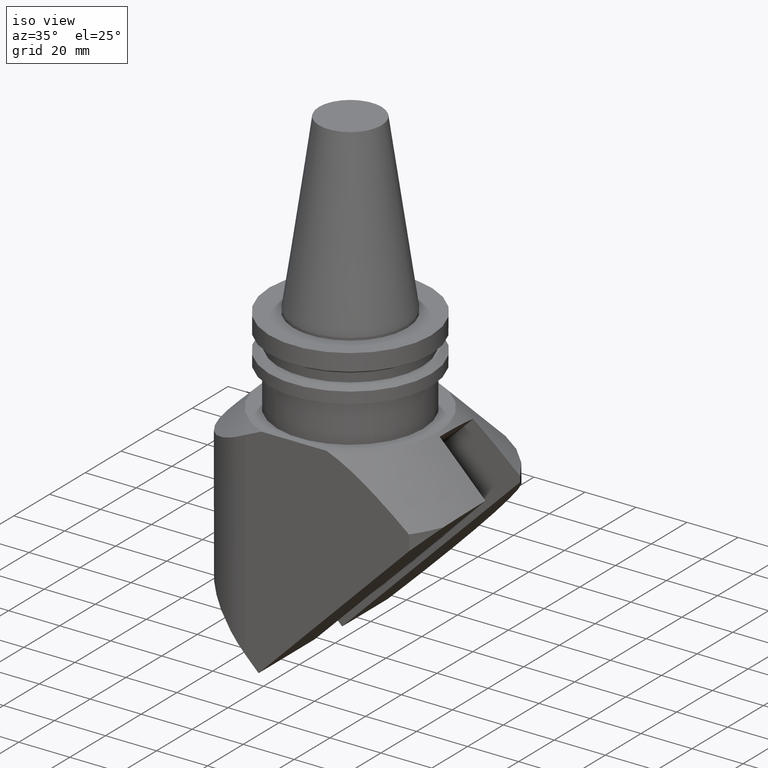
[diagram: clean part render]
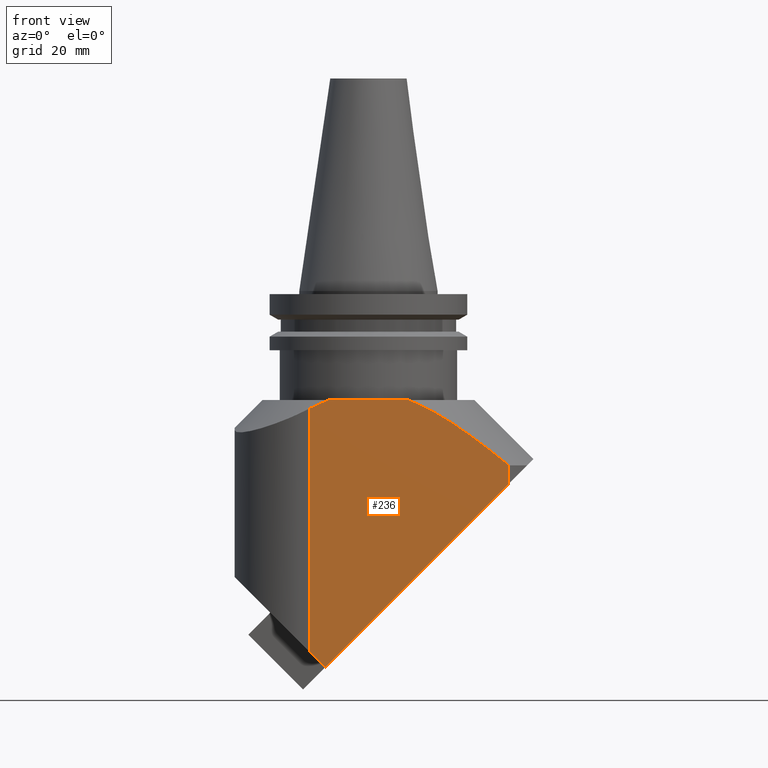
[diagram: tour spotlight — one face highlighted and labeled with its STEP entity id]
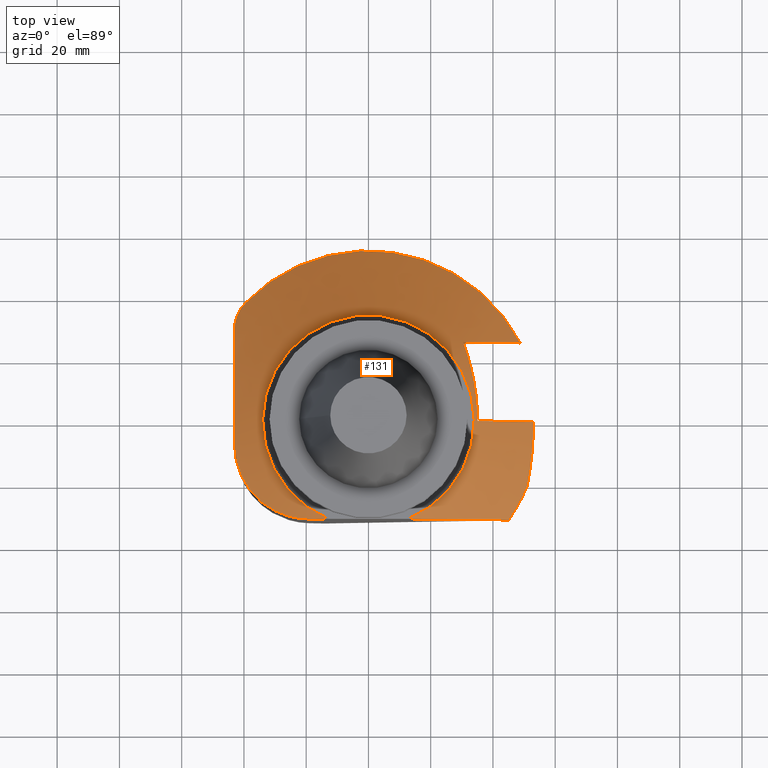
[diagram: tour spotlight — one face highlighted and labeled with its STEP entity id]
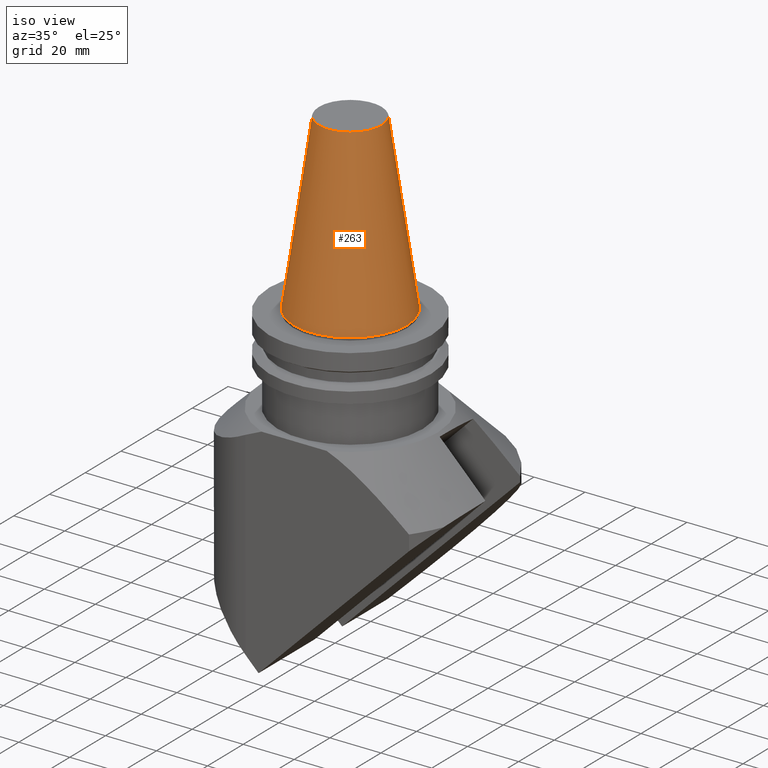
[diagram: tour spotlight — one face highlighted and labeled with its STEP entity id]
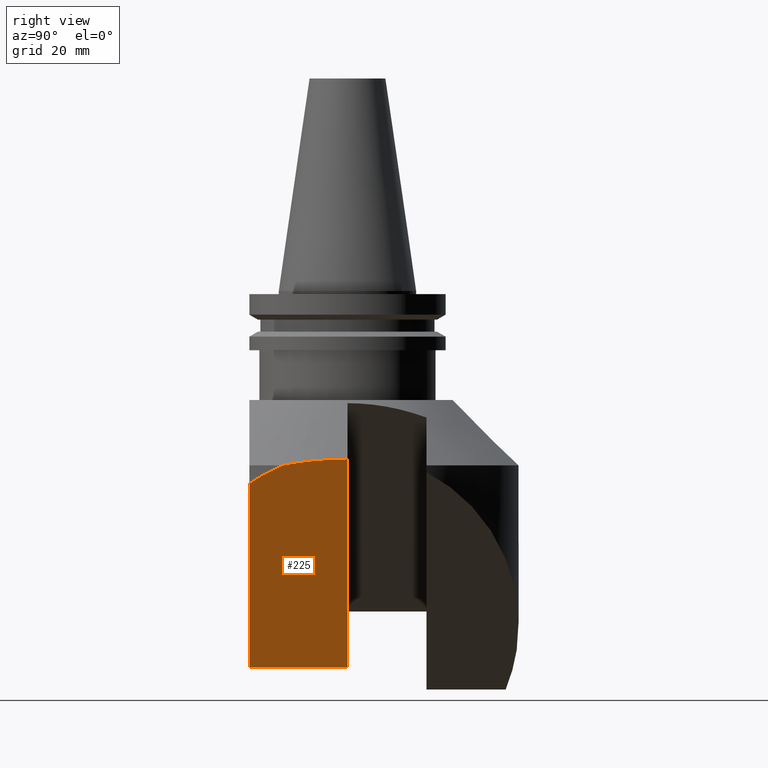
[diagram: tour spotlight — one face highlighted and labeled with its STEP entity id]
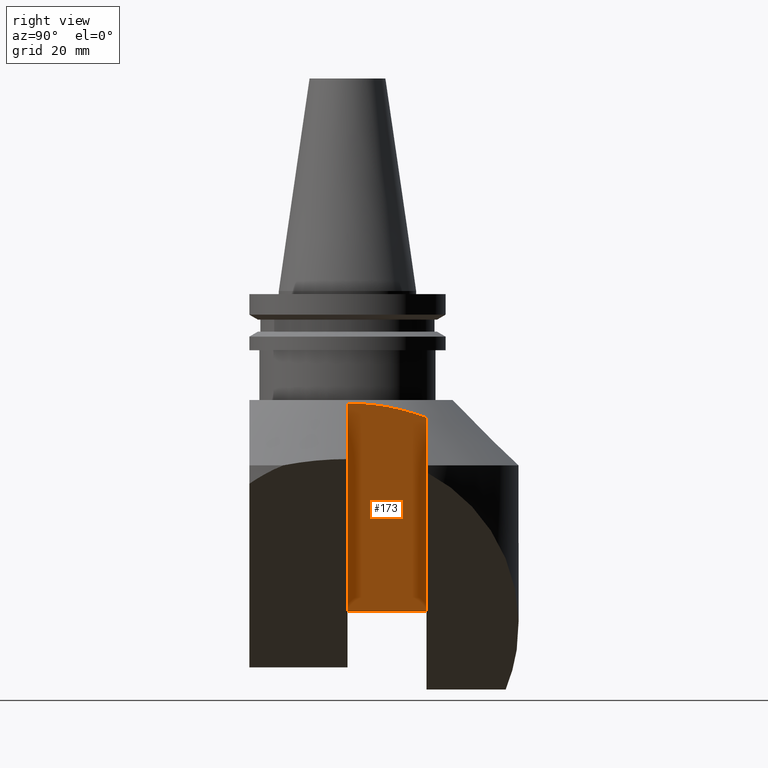
[diagram: tour spotlight — one face highlighted and labeled with its STEP entity id]
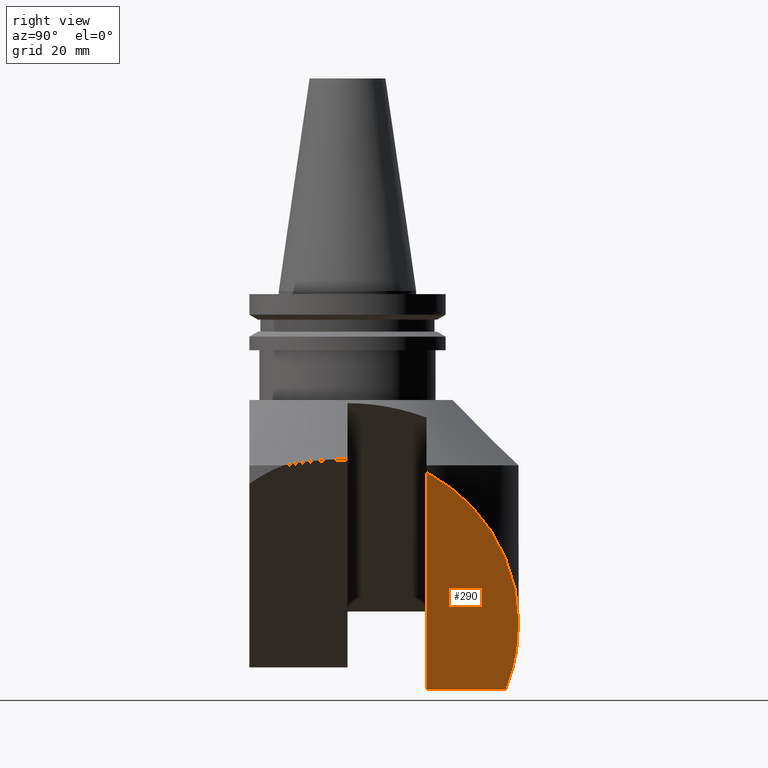
[diagram: tour spotlight — one face highlighted and labeled with its STEP entity id]
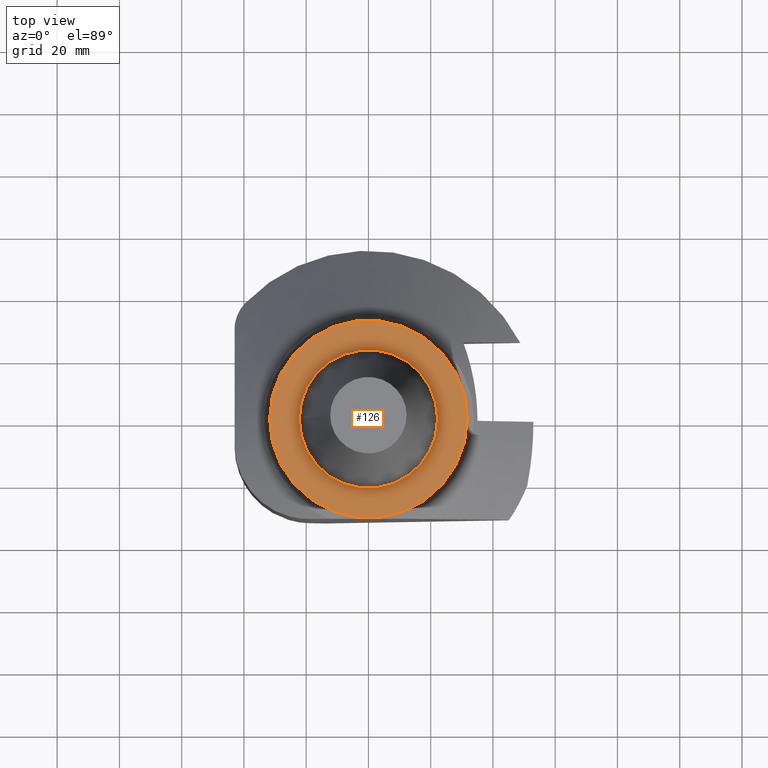
[diagram: tour spotlight — one face highlighted and labeled with its STEP entity id]
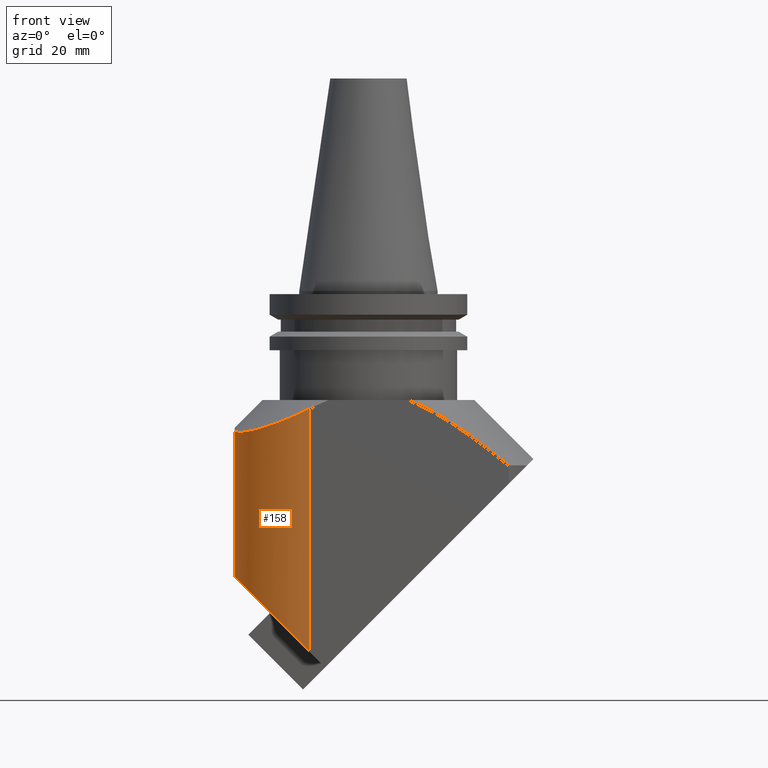
[diagram: tour spotlight — one face highlighted and labeled with its STEP entity id]
A machine part: a face-by-face anatomy tour. The part has 29 B-rep faces; the first image is the clean iso view, then the 8 largest visible faces are spotlighted one at a time (largest first), each with its STEP entity span.

Face 1 — front view, entity #236. In plain terms, the highlighted planar face has unit normal (0, 1, -0).
Definition (entity closure, byte-faithful):
#137=EDGE_CURVE('Unnamed[1]',#372,#373,#374,.T.);
#146=EDGE_CURVE('Unnamed[1]',#387,#388,#389,.T.);
#151=EDGE_CURVE('Unnamed[1]',#349,#387,#395,.T.);
#182=EDGE_CURVE('Unnamed[1]',#437,#349,#438,.T.);
#201=EDGE_CURVE('Unnamed[1]',#365,#373,#462,.T.);
#231=EDGE_CURVE('Unnamed[1]',#388,#372,#504,.T.);
#236=ADVANCED_FACE('Unnamed[1]',(#509),#510,.F.);
#269=EDGE_CURVE('Unnamed[1]',#437,#365,#555,.T.);
#349=VERTEX_POINT('',#650);
#365=VERTEX_POINT('',#696);
#372=VERTEX_POINT('',#707);
#373=VERTEX_POINT('',#708);
#374=LINE('',#709,#710);
#387=VERTEX_POINT('',#736);
#388=VERTEX_POINT('',#737);
#389=LINE('',#738,#739);
#395=(B_SPLINE_CURVE(2,(#748,#749,#750),.UNSPECIFIED.,.F.,.F.)B_SPLINE_CURVE_WITH_KNOTS((3,3),(0.0,38.6326090331156),.UNSPECIFIED.)RATIONAL_B_SPLINE_CURVE((1.0,1.07311621530074,1.0))BOUNDED_CURVE()REPRESENTATION_ITEM('')GEOMETRIC_REPRESENTATION_ITEM()CURVE());
#437=VERTEX_POINT('',#816);
#438=LINE('',#817,#818);
#462=LINE('',#860,#861);
#504=(B_SPLINE_CURVE(2,(#919,#920,#921),.UNSPECIFIED.,.F.,.F.)B_SPLINE_CURVE_WITH_KNOTS((3,3),(0.0,38.6326090331156),.UNSPECIFIED.)RATIONAL_B_SPLINE_CURVE((1.0,1.07311621530072,1.0))BOUNDED_CURVE()REPRESENTATION_ITEM('')GEOMETRIC_REPRESENTATION_ITEM()CURVE());
#509=FACE_OUTER_BOUND('',#934,.T.);
#510=PLANE('',#935);
#555=LINE('',#998,#999);
#650=CARTESIAN_POINT('',(-18.9999999999995,-31.4999999999999,-37.7865464538325));
#696=CARTESIAN_POINT('',(-13.9289321881342,-31.4999999999999,-120.928932188134));
#707=CARTESIAN_POINT('',(45.0860288781351,-31.5000000000002,-55.9999999999997));
#708=CARTESIAN_POINT('',(45.0860288781352,-31.5000000000002,-61.9139711218644));
#709=CARTESIAN_POINT('',(45.0860288781353,-31.5000000000002,-91.9999999999988));
#710=VECTOR('',#1135,1.0);
#736=CARTESIAN_POINT('',(-12.7964838920663,-31.4999999999999,-34.9999999999985));
#737=CARTESIAN_POINT('',(12.7964838920668,-31.5000000000001,-34.9999999999984));
#738=CARTESIAN_POINT('',(-9.10349278046616,-31.5,-34.9999999999984));
#739=VECTOR('',#1153,1.0);
#748=CARTESIAN_POINT('',(-45.0860288781488,-31.4999999999998,-56.0000000000119));
#749=CARTESIAN_POINT('',(-25.1318156845003,-31.4999999999999,-39.6426139583863));
#750=CARTESIAN_POINT('',(-12.796483892066,-31.4999999999999,-34.9999999999984));
#816=CARTESIAN_POINT('',(-18.9999999999995,-31.4999999999999,-115.857864376269));
#817=CARTESIAN_POINT('',(-18.9999999999995,-31.4999999999999,-276.895414657619));
#818=VECTOR('',#1211,1.0);
#860=CARTESIAN_POINT('',(-31.2131000541621,-31.4999999999999,-138.213100054163));
#861=VECTOR('',#1235,1.0);
#919=CARTESIAN_POINT('',(12.7964838920666,-31.5000000000001,-34.9999999999983));
#920=CARTESIAN_POINT('',(25.1318156845009,-31.5000000000001,-39.6426139583861));
#921=CARTESIAN_POINT('',(45.0860288781495,-31.5000000000002,-56.0000000000115));
#934=EDGE_LOOP('',(#1295,#1296,#1297,#1298,#1299,#1300,#1301));
#935=AXIS2_PLACEMENT_3D('',#1302,#1303,#1304);
#998=CARTESIAN_POINT('',(27.4039353731512,-31.5000000000001,-162.261799749421));
#999=VECTOR('',#1351,1.0);
#1135=DIRECTION('',(4.23985966663277E-015,-6.12323399573684E-017,-1.0));
#1153=DIRECTION('',(1.0,-4.6186276791661E-015,3.99815232951625E-015));
#1211=DIRECTION('',(-1.22464679914735E-016,6.12323399573677E-017,1.0));
#1235=DIRECTION('',(0.707106781186543,-3.22256514890244E-015,0.707106781186552));
#1295=ORIENTED_EDGE('',*,*,#269,.T.);
#1296=ORIENTED_EDGE('',*,*,#201,.T.);
#1297=ORIENTED_EDGE('',*,*,#137,.F.);
#1298=ORIENTED_EDGE('',*,*,#231,.F.);
#1299=ORIENTED_EDGE('',*,*,#146,.F.);
#1300=ORIENTED_EDGE('',*,*,#151,.F.);
#1301=ORIENTED_EDGE('',*,*,#182,.F.);
#1302=CARTESIAN_POINT('',(13.0430144390678,-31.5000000000001,-276.895414657619));
#1303=DIRECTION('',(4.6186276791661E-015,1.0,-6.12323399573671E-017));
#1304=DIRECTION('',(-1.0,4.6186276791661E-015,-1.22464679914736E-016));
#1351=DIRECTION('',(0.70710678118654,-3.30916075452598E-015,-0.707106781186555));

Face 2 — top view, entity #131. In plain terms, the highlighted conical surface has half-angle 45 deg.
Definition (entity closure, byte-faithful):
#117=EDGE_CURVE('Unnamed[1]',#337,#338,#339,.T.);
#119=EDGE_CURVE('Unnamed[1]',#341,#337,#342,.T.);
#121=EDGE_CURVE('Unnamed[1]',#344,#345,#346,.T.);
#123=EDGE_CURVE('Unnamed[1]',#348,#349,#350,.T.);
#131=ADVANCED_FACE('Unnamed[1]',(#362),#363,.T.);
#139=EDGE_CURVE('Unnamed[1]',#376,#348,#377,.T.);
#151=EDGE_CURVE('Unnamed[1]',#349,#387,#395,.T.);
#166=EDGE_CURVE('Unnamed[1]',#387,#388,#415,.T.);
#184=EDGE_CURVE('Unnamed[1]',#338,#440,#441,.T.);
#199=EDGE_CURVE('Unnamed[1]',#440,#345,#460,.T.);
#231=EDGE_CURVE('Unnamed[1]',#388,#372,#504,.T.);
#238=EDGE_CURVE('Unnamed[1]',#341,#372,#512,.T.);
#299=EDGE_CURVE('Unnamed[1]',#344,#376,#594,.T.);
#337=VERTEX_POINT('',#630);
#338=VERTEX_POINT('',#631);
#339=LINE('',#632,#633);
#341=VERTEX_POINT('',#636);
#342=B_SPLINE_CURVE_WITH_KNOTS('',2,(#637,#638,#639,#640,#641),.UNSPECIFIED.,.F.,.F.,(3,2,3),(0.0,20.832899807414,41.665799614828),.UNSPECIFIED.);
#344=VERTEX_POINT('',#644);
#345=VERTEX_POINT('',#645);
#346=CIRCLE('',#646,55.0000000000001);
#348=VERTEX_POINT('',#649);
#349=VERTEX_POINT('',#650);
#350=B_SPLINE_CURVE_WITH_KNOTS('',3,(#651,#652,#653,#654,#655,#656,#657,#658,#659,#660,#661,#662,#663,#664,#665,#666,#667,#668,#669,#670,#671,#672,#673,#674,#675,#676),.UNSPECIFIED.,.F.,.F.,(4,2,2,2,2,2,2,2,2,2,2,2,4),(26.1210340867507,29.2629536053741,32.4048731239974,35.4695282493329,38.5341833746684,41.598838500004,44.6634936253395,47.8561395716159,51.0487855178923,54.2414314641686,57.434077410445,60.9718571634875,64.50963691653),.UNSPECIFIED.);
#362=FACE_OUTER_BOUND('',#692,.T.);
#363=CONICAL_SURFACE('',#693,44.4999999999994,0.785398163397441);
#372=VERTEX_POINT('',#707);
#376=VERTEX_POINT('',#713);
#377=(B_SPLINE_CURVE(2,(#715,#716,#717),.UNSPECIFIED.,.F.,.F.)B_SPLINE_CURVE_WITH_KNOTS((3,3),(0.0,72.6636084983826),.UNSPECIFIED.)RATIONAL_B_SPLINE_CURVE((1.0,1.27906976744214,1.0))BOUNDED_CURVE()REPRESENTATION_ITEM('')GEOMETRIC_REPRESENTATION_ITEM()CURVE());
#387=VERTEX_POINT('',#736);
#388=VERTEX_POINT('',#737);
#395=(B_SPLINE_CURVE(2,(#748,#749,#750),.UNSPECIFIED.,.F.,.F.)B_SPLINE_CURVE_WITH_KNOTS((3,3),(0.0,38.6326090331156),.UNSPECIFIED.)RATIONAL_B_SPLINE_CURVE((1.0,1.07311621530074,1.0))BOUNDED_CURVE()REPRESENTATION_ITEM('')GEOMETRIC_REPRESENTATION_ITEM()CURVE());
#415=CIRCLE('',#784,33.9999999999988);
#440=VERTEX_POINT('',#821);
#441=B_SPLINE_CURVE_WITH_KNOTS('',2,(#822,#823,#824),.UNSPECIFIED.,.F.,.F.,(3,3),(0.0,119.908544665201),.UNSPECIFIED.);
#460=(B_SPLINE_CURVE(2,(#849,#850,#851),.UNSPECIFIED.,.F.,.F.)B_SPLINE_CURVE_WITH_KNOTS((3,3),(0.0,33.5817904275309),.UNSPECIFIED.)RATIONAL_B_SPLINE_CURVE((1.0,1.0462986387854,1.0))BOUNDED_CURVE()REPRESENTATION_ITEM('')GEOMETRIC_REPRESENTATION_ITEM()CURVE());
#504=(B_SPLINE_CURVE(2,(#919,#920,#921),.UNSPECIFIED.,.F.,.F.)B_SPLINE_CURVE_WITH_KNOTS((3,3),(0.0,38.6326090331156),.UNSPECIFIED.)RATIONAL_B_SPLINE_CURVE((1.0,1.07311621530072,1.0))BOUNDED_CURVE()REPRESENTATION_ITEM('')GEOMETRIC_REPRESENTATION_ITEM()CURVE());
#512=CIRCLE('',#938,55.0000000000001);
#594=B_SPLINE_CURVE_WITH_KNOTS('',3,(#1055,#1056,#1057,#1058,#1059,#1060,#1061,#1062,#1063,#1064,#1065,#1066,#1067,#1068,#1069,#1070,#1071,#1072),.UNSPECIFIED.,.F.,.F.,(4,2,2,2,2,2,2,2,4),(36.2557716590916,37.5446252428977,38.8334788267038,40.12233241051,41.4111859943161,42.7000395781222,44.2429399208327,45.7858402635432,47.3287406062536),.UNSPECIFIED.);
#630=CARTESIAN_POINT('',(53.0000000000004,-3.85271485007796E-013,-53.9999999999996));
#631=CARTESIAN_POINT('',(35.0394877578622,2.94327983208917E-013,-36.0394877578613));
#632=CARTESIAN_POINT('',(44.4999999999999,2.92010826001792E-013,-45.499999999999));
#633=VECTOR('',#1106,1.0);
#636=CARTESIAN_POINT('',(50.9999999999997,-20.5912602819761,-55.9999999999998));
#637=CARTESIAN_POINT('',(50.9997901113171,-20.592340721754,-56.0002098886824));
#638=CARTESIAN_POINT('',(53.0000000000005,-10.2961703608755,-53.999999999999));
#639=CARTESIAN_POINT('',(53.0000000000005,-1.30424884109193E-014,-53.999999999999));
#640=CARTESIAN_POINT('',(53.0000000000005,10.2961703608755,-53.999999999999));
#641=CARTESIAN_POINT('',(50.9997901113171,20.592340721754,-56.0002098886824));
#644=CARTESIAN_POINT('',(-39.6511627906968,38.1154206240154,-56.0000000000001));
#645=CARTESIAN_POINT('',(48.7836038029177,25.4000000000002,-55.9999999999998));
#646=AXIS2_PLACEMENT_3D('',#1107,#1108,#1109);
#649=CARTESIAN_POINT('',(-42.9999999999993,-7.49999999999967,-44.6491695224545));
#650=CARTESIAN_POINT('',(-18.9999999999995,-31.4999999999999,-37.7865464538325));
#651=CARTESIAN_POINT('',(-42.9694685823303,-6.28980337108126,-44.4273745084132));
#652=CARTESIAN_POINT('',(-43.0254126314851,-7.3978460744687,-44.6432120353778));
#653=CARTESIAN_POINT('',(-43.0037050726678,-8.51637629093491,-44.8253065560788));
#654=CARTESIAN_POINT('',(-42.8099886090219,-10.7086321721822,-45.1155313618004));
#655=CARTESIAN_POINT('',(-42.6379543051918,-11.7823544868815,-45.2236699984518));
#656=CARTESIAN_POINT('',(-42.182099669516,-13.7951313129174,-45.3689294630072));
#657=CARTESIAN_POINT('',(-41.88284656391,-14.8176308127668,-45.4135423577628));
#658=CARTESIAN_POINT('',(-41.1309507025361,-16.8484441797186,-45.4348163328809));
#659=CARTESIAN_POINT('',(-40.6782934786384,-17.8567526277081,-45.4114833647167));
#660=CARTESIAN_POINT('',(-39.6396859063184,-19.7969142007378,-45.2946406522136));
#661=CARTESIAN_POINT('',(-39.0532403375704,-20.7297240842489,-45.2010685500471));
#662=CARTESIAN_POINT('',(-37.78874428759,-22.4713438100465,-44.9523367632936));
#663=CARTESIAN_POINT('',(-37.1107309192384,-23.2801784665288,-44.7971621564313));
#664=CARTESIAN_POINT('',(-35.6972983792389,-24.7713398425834,-44.4378986273893));
#665=CARTESIAN_POINT('',(-34.89946280051,-25.5114998903284,-44.2165344542336));
#666=CARTESIAN_POINT('',(-33.1873765536986,-26.8887955319529,-43.6997541852656));
#667=CARTESIAN_POINT('',(-32.2731604417753,-27.5259659471109,-43.4043164105869));
#668=CARTESIAN_POINT('',(-30.3807717755459,-28.6587839759325,-42.7517371221532));
#669=CARTESIAN_POINT('',(-29.401824995131,-29.1549793750131,-42.3942824581296));
#670=CARTESIAN_POINT('',(-27.4411962114427,-29.9918274382606,-41.6390876792466));
#671=CARTESIAN_POINT('',(-26.4595620086914,-30.3325621458989,-41.241314382709));
#672=CARTESIAN_POINT('',(-24.4602018527796,-30.8961199529364,-40.3938813843897));
#673=CARTESIAN_POINT('',(-23.3552101515649,-31.1288541157082,-39.9032006708329));
#674=CARTESIAN_POINT('',(-21.1037809390728,-31.4345922910756,-38.848259999896));
#675=CARTESIAN_POINT('',(-19.9573823335316,-31.5076786451012,-38.2839408774409));
#676=CARTESIAN_POINT('',(-18.8237335880866,-31.4993527027713,-37.69526082328));
#692=EDGE_LOOP('',(#1118,#1119,#1120,#1121,#1122,#1123,#1124,#1125,#1126,#1127,#1128,#1129));
#693=AXIS2_PLACEMENT_3D('',#1130,#1131,#1132);
#707=CARTESIAN_POINT('',(45.0860288781351,-31.5000000000002,-55.9999999999997));
#713=CARTESIAN_POINT('',(-42.9999999999992,29.7993288515031,-53.3163454381134));
#715=CARTESIAN_POINT('',(-42.9999999999992,34.2928563989832,-56.0000000000115));
#716=CARTESIAN_POINT('',(-42.9999999999993,1.03899586077456E-013,-34.6181818181743));
#717=CARTESIAN_POINT('',(-42.9999999999994,-34.2928563989829,-56.0000000000115));
#736=CARTESIAN_POINT('',(-12.7964838920663,-31.4999999999999,-34.9999999999985));
#737=CARTESIAN_POINT('',(12.7964838920668,-31.5000000000001,-34.9999999999984));
#748=CARTESIAN_POINT('',(-45.0860288781488,-31.4999999999998,-56.0000000000119));
#749=CARTESIAN_POINT('',(-25.1318156845003,-31.4999999999999,-39.6426139583863));
#750=CARTESIAN_POINT('',(-12.796483892066,-31.4999999999999,-34.9999999999984));
#784=AXIS2_PLACEMENT_3D('',#1186,#1187,#1188);
#821=CARTESIAN_POINT('',(30.4363953521002,25.4000000000002,-40.6425801636233));
#822=CARTESIAN_POINT('',(15.078765627041,-52.8928531558275,-56.0002098886825));
#823=CARTESIAN_POINT('',(55.0002098886838,-1.10879150918611E-014,-16.0787656270398));
#824=CARTESIAN_POINT('',(15.078765627041,52.8928531558275,-56.0002098886825));
#849=CARTESIAN_POINT('',(22.6017698421922,25.4000000000002,-34.999999999991));
#850=CARTESIAN_POINT('',(32.6038855826212,25.4000000000002,-41.648985820585));
#851=CARTESIAN_POINT('',(48.7838404371693,25.4000000000003,-56.0002098886824));
#919=CARTESIAN_POINT('',(12.7964838920666,-31.5000000000001,-34.9999999999983));
#920=CARTESIAN_POINT('',(25.1318156845009,-31.5000000000001,-39.6426139583861));
#921=CARTESIAN_POINT('',(45.0860288781495,-31.5000000000002,-56.0000000000115));
#938=AXIS2_PLACEMENT_3D('',#1305,#1306,#1307);
#1055=CARTESIAN_POINT('',(-38.6772671526272,39.022103329239,-55.9422928410586));
#1056=CARTESIAN_POINT('',(-39.0263570395986,38.7315122138396,-55.981649885972));
#1057=CARTESIAN_POINT('',(-39.3534343272449,38.4251451286511,-56.0000000000001));
#1058=CARTESIAN_POINT('',(-39.9488912541485,37.8056961193799,-56.0000000000001));
#1059=CARTESIAN_POINT('',(-40.2421062007639,37.4667782265766,-55.9816498859716));
#1060=CARTESIAN_POINT('',(-40.7952706044588,36.7461972633089,-55.9029357961448));
#1061=CARTESIAN_POINT('',(-41.0552206566583,36.364534747911,-55.8425709212606));
#1062=CARTESIAN_POINT('',(-41.5259916391148,35.5797173286457,-55.6820018060092));
#1063=CARTESIAN_POINT('',(-41.7370472659761,35.1762284600342,-55.5817398436664));
#1064=CARTESIAN_POINT('',(-42.1034021049853,34.3720408572206,-55.3502697574901));
#1065=CARTESIAN_POINT('',(-42.2587486622798,33.9713573270032,-55.2190837488597));
#1066=CARTESIAN_POINT('',(-42.5405522018784,33.1238529322261,-54.9136263698596));
#1067=CARTESIAN_POINT('',(-42.6696571086576,32.6401554698785,-54.7203428433214));
#1068=CARTESIAN_POINT('',(-42.8659014811064,31.6571703282053,-54.2865629527261));
#1069=CARTESIAN_POINT('',(-42.9330994531661,31.1578877851209,-54.0460814201962));
#1070=CARTESIAN_POINT('',(-43.0044193919994,30.1714320851678,-53.5311065562397));
#1071=CARTESIAN_POINT('',(-43.0086331019961,29.6839232987423,-53.2564551514201));
#1072=CARTESIAN_POINT('',(-42.9857557853309,29.2148134501781,-52.9738446275038));
#1106=DIRECTION('',(-0.707106781186545,1.7319121124711E-016,0.70710678118655));
#1107=CARTESIAN_POINT('',(5.18444349174941E-013,-3.42901103761268E-015,-56.0));
#1108=DIRECTION('',(4.23985966663278E-015,-6.12323399573684E-017,-1.0));
#1109=DIRECTION('',(-1.0,1.83697019872103E-016,-4.23985966663278E-015));
#1118=ORIENTED_EDGE('',*,*,#199,.T.);
#1119=ORIENTED_EDGE('',*,*,#121,.F.);
#1120=ORIENTED_EDGE('',*,*,#299,.T.);
#1121=ORIENTED_EDGE('',*,*,#139,.T.);
#1122=ORIENTED_EDGE('',*,*,#123,.T.);
#1123=ORIENTED_EDGE('',*,*,#151,.T.);
#1124=ORIENTED_EDGE('',*,*,#166,.T.);
#1125=ORIENTED_EDGE('',*,*,#231,.T.);
#1126=ORIENTED_EDGE('',*,*,#238,.F.);
#1127=ORIENTED_EDGE('',*,*,#119,.T.);
#1128=ORIENTED_EDGE('',*,*,#117,.T.);
#1129=ORIENTED_EDGE('',*,*,#184,.T.);
#1130=CARTESIAN_POINT('',(4.73925822675294E-013,-2.78607146806027E-015,-45.4999999999992));
#1131=DIRECTION('',(4.23985966663278E-015,-6.12323399573684E-017,-1.0));
#1132=DIRECTION('',(-1.0,1.83697019872103E-016,-4.23985966663278E-015));
#1186=CARTESIAN_POINT('',(4.29407296175646E-013,-2.14313189850785E-015,-34.9999999999984));
#1187=DIRECTION('',(4.23985966663279E-015,-6.12323399573684E-017,-1.0));
#1188=DIRECTION('',(-1.0,1.83697019872103E-016,-4.23985966663279E-015));
#1305=CARTESIAN_POINT('',(5.18444349174941E-013,-3.42901103761268E-015,-56.0));
#1306=DIRECTION('',(4.23985966663278E-015,-6.12323399573684E-017,-1.0));
#1307=DIRECTION('',(-1.0,1.83697019872103E-016,-4.23985966663278E-015));

Face 3 — iso view, entity #263. In plain terms, the highlighted conical surface has half-angle 8.297 deg.
Definition (entity closure, byte-faithful):
#153=EDGE_CURVE('Unnamed[1]',#397,#397,#398,.T.);
#260=EDGE_CURVE('Unnamed[1]',#542,#542,#543,.T.);
#263=ADVANCED_FACE('Unnamed[1]',(#546,#547),#548,.T.);
#397=VERTEX_POINT('',#759);
#398=CIRCLE('',#760,12.2718750014769);
#542=VERTEX_POINT('',#980);
#543=CIRCLE('',#981,22.225);
#546=FACE_BOUND('',#985,.T.);
#547=FACE_BOUND('',#986,.T.);
#548=CONICAL_SURFACE('',#987,17.2484375007384,0.14481249821775);
#759=CARTESIAN_POINT('',(-12.2718750014769,6.4334140681046E-015,68.2499999999999));
#760=AXIS2_PLACEMENT_3D('',#1165,#1166,#1167);
#980=CARTESIAN_POINT('',(-22.2249999999997,4.08266626665743E-015,-9.42308810909133E-014));
#981=AXIS2_PLACEMENT_3D('',#1338,#1339,#1340);
#985=EDGE_LOOP('',(#1342));
#986=EDGE_LOOP('',(#1343));
#987=AXIS2_PLACEMENT_3D('',#1344,#1345,#1346);
#1165=CARTESIAN_POINT('',(-8.35821440418068E-015,4.17910720209035E-015,68.25));
#1166=DIRECTION('',(4.23985966663278E-015,-6.12323399573684E-017,-1.0));
#1167=DIRECTION('',(-1.0,1.83697019872103E-016,-4.23985966663278E-015));
#1338=CARTESIAN_POINT('',(2.81012207843506E-013,-5.1621105128532E-029,3.4414070085688E-029));
#1339=DIRECTION('',(4.23985966663276E-015,-6.12323399573684E-017,-1.0));
#1340=DIRECTION('',(-1.0,1.83697019872103E-016,-4.23985966663276E-015));
#1342=ORIENTED_EDGE('',*,*,#260,.F.);
#1343=ORIENTED_EDGE('',*,*,#153,.T.);
#1344=CARTESIAN_POINT('',(1.36326996719663E-013,2.08955360104515E-015,34.125));
#1345=DIRECTION('',(4.23985966663279E-015,-6.12323399573684E-017,-1.0));
#1346=DIRECTION('',(-1.0,1.83697019872103E-016,-4.23985966663279E-015));

Face 4 — right view, entity #225. In plain terms, the highlighted planar face has unit normal (-0.7071, 0, 0.7071).
Definition (entity closure, byte-faithful):
#119=EDGE_CURVE('Unnamed[1]',#341,#337,#342,.T.);
#133=EDGE_CURVE('Unnamed[1]',#365,#366,#367,.T.);
#201=EDGE_CURVE('Unnamed[1]',#365,#373,#462,.T.);
#225=ADVANCED_FACE('Unnamed[1]',(#497),#498,.F.);
#255=EDGE_CURVE('Unnamed[1]',#373,#341,#535,.T.);
#278=EDGE_CURVE('Unnamed[1]',#366,#337,#567,.T.);
#337=VERTEX_POINT('',#630);
#341=VERTEX_POINT('',#636);
#342=B_SPLINE_CURVE_WITH_KNOTS('',2,(#637,#638,#639,#640,#641),.UNSPECIFIED.,.F.,.F.,(3,2,3),(0.0,20.832899807414,41.665799614828),.UNSPECIFIED.);
#365=VERTEX_POINT('',#696);
#366=VERTEX_POINT('',#697);
#367=LINE('',#698,#699);
#373=VERTEX_POINT('',#708);
#462=LINE('',#860,#861);
#497=FACE_OUTER_BOUND('',#908,.T.);
#498=PLANE('',#909);
#535=ELLIPSE('',#971,77.7817459305204,55.0);
#567=LINE('',#1016,#1017);
#630=CARTESIAN_POINT('',(53.0000000000004,-3.85271485007796E-013,-53.9999999999996));
#636=CARTESIAN_POINT('',(50.9999999999997,-20.5912602819761,-55.9999999999998));
#637=CARTESIAN_POINT('',(50.9997901113171,-20.592340721754,-56.0002098886824));
#638=CARTESIAN_POINT('',(53.0000000000005,-10.2961703608755,-53.999999999999));
#639=CARTESIAN_POINT('',(53.0000000000005,-1.30424884109193E-014,-53.999999999999));
#640=CARTESIAN_POINT('',(53.0000000000005,10.2961703608755,-53.999999999999));
#641=CARTESIAN_POINT('',(50.9997901113171,20.592340721754,-56.0002098886824));
#696=CARTESIAN_POINT('',(-13.9289321881342,-31.4999999999999,-120.928932188134));
#697=CARTESIAN_POINT('',(-13.9289321881341,-4.84605815346446E-015,-120.928932188134));
#698=CARTESIAN_POINT('',(-13.9289321881341,-4.84605815346446E-015,-120.928932188134));
#699=VECTOR('',#1133,1.0);
#708=CARTESIAN_POINT('',(45.0860288781352,-31.5000000000002,-61.9139711218644));
#860=CARTESIAN_POINT('',(-31.2131000541621,-31.4999999999999,-138.213100054163));
#861=VECTOR('',#1235,1.0);
#908=EDGE_LOOP('',(#1277,#1278,#1279,#1280,#1281));
#909=AXIS2_PLACEMENT_3D('',#1282,#1283,#1284);
#971=AXIS2_PLACEMENT_3D('',#1329,#1330,#1331);
#1016=CARTESIAN_POINT('',(6.23223304750986,2.1518711434151E-014,-100.76776695249));
#1017=VECTOR('',#1362,1.0);
#1133=DIRECTION('',(1.83697019872103E-016,1.0,-6.12323399573677E-017));
#1235=DIRECTION('',(0.707106781186543,-3.22256514890244E-015,0.707106781186552));
#1277=ORIENTED_EDGE('',*,*,#278,.T.);
#1278=ORIENTED_EDGE('',*,*,#119,.F.);
#1279=ORIENTED_EDGE('',*,*,#255,.F.);
#1280=ORIENTED_EDGE('',*,*,#201,.F.);
#1281=ORIENTED_EDGE('',*,*,#133,.T.);
#1282=CARTESIAN_POINT('',(16.0000000009516,-8.51129525419064E-015,-90.9999999990483));
#1283=DIRECTION('',(-0.707106781186552,1.73191211247099E-016,0.707106781186543));
#1284=DIRECTION('',(-0.707106781186543,8.65956056235482E-017,-0.707106781186552));
#1329=CARTESIAN_POINT('',(7.3467719217321E-013,-6.55186037543844E-015,-106.999999999999));
#1330=DIRECTION('',(-0.707106781186552,1.73191211247099E-016,0.707106781186543));
#1331=DIRECTION('',(-0.707106781186543,8.65956056235482E-017,-0.707106781186552));
#1362=DIRECTION('',(0.707106781186543,4.0582370196437E-015,0.707106781186552));

Face 5 — right view, entity #173. In plain terms, the highlighted planar face has unit normal (0.7071, -0, -0.7071).
Definition (entity closure, byte-faithful):
#135=EDGE_CURVE('Unnamed[1]',#338,#369,#370,.T.);
#173=ADVANCED_FACE('Unnamed[1]',(#425),#426,.T.);
#180=EDGE_CURVE('Unnamed[1]',#434,#369,#435,.T.);
#184=EDGE_CURVE('Unnamed[1]',#338,#440,#441,.T.);
#220=EDGE_CURVE('Unnamed[1]',#434,#440,#491,.T.);
#338=VERTEX_POINT('',#631);
#369=VERTEX_POINT('',#702);
#370=LINE('',#703,#704);
#425=FACE_OUTER_BOUND('',#798,.T.);
#426=PLANE('',#799);
#434=VERTEX_POINT('',#811);
#435=LINE('',#812,#813);
#440=VERTEX_POINT('',#821);
#441=B_SPLINE_CURVE_WITH_KNOTS('',2,(#822,#823,#824),.UNSPECIFIED.,.F.,.F.,(3,3),(0.0,119.908544665201),.UNSPECIFIED.);
#491=LINE('',#898,#899);
#631=CARTESIAN_POINT('',(35.0394877578622,2.94327983208917E-013,-36.0394877578613));
#702=CARTESIAN_POINT('',(-31.8894444302724,-8.9791470199993E-014,-102.968419945996));
#703=CARTESIAN_POINT('',(-55.4371716450246,-2.24936911954946E-013,-126.516147160748));
#704=VECTOR('',#1134,1.0);
#798=EDGE_LOOP('',(#1194,#1195,#1196,#1197));
#799=AXIS2_PLACEMENT_3D('',#1198,#1199,#1200);
#811=CARTESIAN_POINT('',(-31.8894444302723,25.3999999999999,-102.968419945996));
#812=CARTESIAN_POINT('',(-31.8894444302724,6.34999999999988,-102.968419945996));
#813=VECTOR('',#1210,1.0);
#821=CARTESIAN_POINT('',(30.4363953521002,25.4000000000002,-40.6425801636233));
#822=CARTESIAN_POINT('',(15.078765627041,-52.8928531558275,-56.0002098886825));
#823=CARTESIAN_POINT('',(55.0002098886838,-1.10879150918611E-014,-16.0787656270398));
#824=CARTESIAN_POINT('',(15.078765627041,52.8928531558275,-56.0002098886825));
#898=CARTESIAN_POINT('',(-55.4371716450247,25.3999999999998,-126.516147160748));
#899=VECTOR('',#1274,1.0);
#1134=DIRECTION('',(-0.707106781186547,-4.0582370196437E-015,-0.707106781186548));
#1194=ORIENTED_EDGE('',*,*,#180,.F.);
#1195=ORIENTED_EDGE('',*,*,#220,.T.);
#1196=ORIENTED_EDGE('',*,*,#184,.F.);
#1197=ORIENTED_EDGE('',*,*,#135,.T.);
#1198=CARTESIAN_POINT('',(-55.4371716450246,12.6999999999998,-126.516147160748));
#1199=DIRECTION('',(0.707106781186547,-1.731912112471E-016,-0.707106781186548));
#1200=DIRECTION('',(-0.707106781186548,8.65956056235494E-017,-0.707106781186547));
#1210=DIRECTION('',(-1.83697019872104E-016,-1.0,6.12323399573686E-017));
#1274=DIRECTION('',(0.707106781186547,4.0582370196437E-015,0.707106781186548));

Face 6 — right view, entity #290. In plain terms, the highlighted planar face has unit normal (-0.7071, 0, 0.7071).
Definition (entity closure, byte-faithful):
#155=EDGE_CURVE('Unnamed[1]',#357,#383,#400,.T.);
#160=EDGE_CURVE('Unnamed[1]',#406,#383,#407,.T.);
#248=EDGE_CURVE('Unnamed[1]',#406,#357,#526,.T.);
#290=ADVANCED_FACE('Unnamed[1]',(#581),#582,.F.);
#357=VERTEX_POINT('',#685);
#383=VERTEX_POINT('',#731);
#400=LINE('',#763,#764);
#406=VERTEX_POINT('',#772);
#407=ELLIPSE('',#773,77.7817459305204,55.0);
#526=LINE('',#957,#958);
#581=FACE_OUTER_BOUND('',#1038,.T.);
#582=PLANE('',#1039);
#685=CARTESIAN_POINT('',(-20.9999999961957,25.3999999999998,-127.999999999999));
#731=CARTESIAN_POINT('',(-20.9999999980969,50.8330601093412,-127.999999998097));
#763=CARTESIAN_POINT('',(-20.9999999961957,-3.98010209792766E-015,-127.999999999999));
#764=VECTOR('',#1168,1.0);
#772=CARTESIAN_POINT('',(48.7836038029176,25.4000000000002,-58.2163961970819));
#773=AXIS2_PLACEMENT_3D('',#1177,#1178,#1179);
#957=CARTESIAN_POINT('',(6.23223304750977,25.4,-100.76776695249));
#958=VECTOR('',#1321,1.0);
#1038=EDGE_LOOP('',(#1376,#1377,#1378));
#1039=AXIS2_PLACEMENT_3D('',#1379,#1380,#1381);
#1168=DIRECTION('',(1.83697019872103E-016,1.0,-6.12323399573677E-017));
#1177=CARTESIAN_POINT('',(7.3467719217321E-013,-6.55186037543844E-015,-106.999999999999));
#1178=DIRECTION('',(-0.707106781186552,1.73191211247099E-016,0.707106781186543));
#1179=DIRECTION('',(-0.707106781186543,8.65956056235482E-017,-0.707106781186552));
#1321=DIRECTION('',(-0.707106781186543,-4.0582370196437E-015,-0.707106781186552));
#1376=ORIENTED_EDGE('',*,*,#248,.T.);
#1377=ORIENTED_EDGE('',*,*,#155,.T.);
#1378=ORIENTED_EDGE('',*,*,#160,.F.);
#1379=CARTESIAN_POINT('',(16.0000000009516,-8.51129525419064E-015,-90.9999999990483));
#1380=DIRECTION('',(-0.707106781186552,1.73191211247099E-016,0.707106781186543));
#1381=DIRECTION('',(-0.707106781186543,8.65956056235482E-017,-0.707106781186552));

Face 7 — top view, entity #126. In plain terms, the highlighted planar face has unit normal (-0, 0, 1).
Definition (entity closure, byte-faithful):
#115=EDGE_CURVE('Unnamed[1]',#334,#334,#335,.T.);
#126=ADVANCED_FACE('Unnamed[1]',(#353,#354),#355,.T.);
#307=EDGE_CURVE('Unnamed[1]',#605,#605,#606,.T.);
#334=VERTEX_POINT('',#626);
#335=CIRCLE('',#627,31.75);
#353=FACE_OUTER_BOUND('',#680,.T.);
#354=FACE_BOUND('',#681,.T.);
#355=PLANE('',#682);
#605=VERTEX_POINT('',#1086);
#606=CIRCLE('',#1087,22.225);
#626=CARTESIAN_POINT('',(-31.7499999999997,5.77114804098184E-015,-1.00000000000013));
#627=AXIS2_PLACEMENT_3D('',#1103,#1104,#1105);
#680=EDGE_LOOP('',(#1111));
#681=EDGE_LOOP('',(#1112));
#682=AXIS2_PLACEMENT_3D('',#1113,#1114,#1115);
#1086=CARTESIAN_POINT('',(-22.2249999999997,4.02143392670006E-015,-1.00000000000009));
#1087=AXIS2_PLACEMENT_3D('',#1406,#1407,#1408);
#1103=CARTESIAN_POINT('',(2.85252067510139E-013,-6.12323399574201E-017,-1.0));
#1104=DIRECTION('',(4.23985966663277E-015,-6.12323399573684E-017,-1.0));
#1105=DIRECTION('',(-1.0,1.83697019872103E-016,-4.23985966663277E-015));
#1111=ORIENTED_EDGE('',*,*,#115,.F.);
#1112=ORIENTED_EDGE('',*,*,#307,.T.);
#1113=CARTESIAN_POINT('',(-26.9874999999997,4.89629098384095E-015,-1.00000000000011));
#1114=DIRECTION('',(-4.24864788954524E-015,6.12323399573684E-017,1.0));
#1115=DIRECTION('',(1.0,-1.83697019872103E-016,4.24864788954524E-015));
#1406=CARTESIAN_POINT('',(2.85252067510139E-013,-6.12323399574201E-017,-1.0));
#1407=DIRECTION('',(4.23985966663276E-015,-6.12323399573684E-017,-1.0));
#1408=DIRECTION('',(-1.0,1.83697019872103E-016,-4.23985966663276E-015));

Face 8 — front view, entity #158. In plain terms, the highlighted cylindrical surface (partial cylindrical patch) has radius 24 mm, axis along (-0, 0, 1).
Definition (entity closure, byte-faithful):
#123=EDGE_CURVE('Unnamed[1]',#348,#349,#350,.T.);
#158=ADVANCED_FACE('Unnamed[1]',(#403),#404,.T.);
#182=EDGE_CURVE('Unnamed[1]',#437,#349,#438,.T.);
#227=EDGE_CURVE('Unnamed[1]',#465,#437,#500,.T.);
#240=EDGE_CURVE('Unnamed[1]',#465,#348,#514,.T.);
#348=VERTEX_POINT('',#649);
#349=VERTEX_POINT('',#650);
#350=B_SPLINE_CURVE_WITH_KNOTS('',3,(#651,#652,#653,#654,#655,#656,#657,#658,#659,#660,#661,#662,#663,#664,#665,#666,#667,#668,#669,#670,#671,#672,#673,#674,#675,#676),.UNSPECIFIED.,.F.,.F.,(4,2,2,2,2,2,2,2,2,2,2,2,4),(26.1210340867507,29.2629536053741,32.4048731239974,35.4695282493329,38.5341833746684,41.598838500004,44.6634936253395,47.8561395716159,51.0487855178923,54.2414314641686,57.434077410445,60.9718571634875,64.50963691653),.UNSPECIFIED.);
#403=FACE_OUTER_BOUND('',#768,.T.);
#404=CYLINDRICAL_SURFACE('',#769,24.0);
#437=VERTEX_POINT('',#816);
#438=LINE('',#817,#818);
#465=VERTEX_POINT('',#865);
#500=ELLIPSE('',#912,33.9411254969546,24.0);
#514=LINE('',#941,#942);
#649=CARTESIAN_POINT('',(-42.9999999999993,-7.49999999999967,-44.6491695224545));
#650=CARTESIAN_POINT('',(-18.9999999999995,-31.4999999999999,-37.7865464538325));
#651=CARTESIAN_POINT('',(-42.9694685823303,-6.28980337108126,-44.4273745084132));
#652=CARTESIAN_POINT('',(-43.0254126314851,-7.3978460744687,-44.6432120353778));
#653=CARTESIAN_POINT('',(-43.0037050726678,-8.51637629093491,-44.8253065560788));
#654=CARTESIAN_POINT('',(-42.8099886090219,-10.7086321721822,-45.1155313618004));
#655=CARTESIAN_POINT('',(-42.6379543051918,-11.7823544868815,-45.2236699984518));
#656=CARTESIAN_POINT('',(-42.182099669516,-13.7951313129174,-45.3689294630072));
#657=CARTESIAN_POINT('',(-41.88284656391,-14.8176308127668,-45.4135423577628));
#658=CARTESIAN_POINT('',(-41.1309507025361,-16.8484441797186,-45.4348163328809));
#659=CARTESIAN_POINT('',(-40.6782934786384,-17.8567526277081,-45.4114833647167));
#660=CARTESIAN_POINT('',(-39.6396859063184,-19.7969142007378,-45.2946406522136));
#661=CARTESIAN_POINT('',(-39.0532403375704,-20.7297240842489,-45.2010685500471));
#662=CARTESIAN_POINT('',(-37.78874428759,-22.4713438100465,-44.9523367632936));
#663=CARTESIAN_POINT('',(-37.1107309192384,-23.2801784665288,-44.7971621564313));
#664=CARTESIAN_POINT('',(-35.6972983792389,-24.7713398425834,-44.4378986273893));
#665=CARTESIAN_POINT('',(-34.89946280051,-25.5114998903284,-44.2165344542336));
#666=CARTESIAN_POINT('',(-33.1873765536986,-26.8887955319529,-43.6997541852656));
#667=CARTESIAN_POINT('',(-32.2731604417753,-27.5259659471109,-43.4043164105869));
#668=CARTESIAN_POINT('',(-30.3807717755459,-28.6587839759325,-42.7517371221532));
#669=CARTESIAN_POINT('',(-29.401824995131,-29.1549793750131,-42.3942824581296));
#670=CARTESIAN_POINT('',(-27.4411962114427,-29.9918274382606,-41.6390876792466));
#671=CARTESIAN_POINT('',(-26.4595620086914,-30.3325621458989,-41.241314382709));
#672=CARTESIAN_POINT('',(-24.4602018527796,-30.8961199529364,-40.3938813843897));
#673=CARTESIAN_POINT('',(-23.3552101515649,-31.1288541157082,-39.9032006708329));
#674=CARTESIAN_POINT('',(-21.1037809390728,-31.4345922910756,-38.848259999896));
#675=CARTESIAN_POINT('',(-19.9573823335316,-31.5076786451012,-38.2839408774409));
#676=CARTESIAN_POINT('',(-18.8237335880866,-31.4993527027713,-37.69526082328));
#768=EDGE_LOOP('',(#1170,#1171,#1172,#1173));
#769=AXIS2_PLACEMENT_3D('',#1174,#1175,#1176);
#816=CARTESIAN_POINT('',(-18.9999999999995,-31.4999999999999,-115.857864376269));
#817=CARTESIAN_POINT('',(-18.9999999999995,-31.4999999999999,-276.895414657619));
#818=VECTOR('',#1211,1.0);
#865=CARTESIAN_POINT('',(-42.9999999999993,-7.49999999999971,-91.8578643762687));
#912=AXIS2_PLACEMENT_3D('',#1285,#1286,#1287);
#941=CARTESIAN_POINT('',(-42.9999999999993,-7.49999999999968,-276.895414657619));
#942=VECTOR('',#1308,1.0);
#1170=ORIENTED_EDGE('',*,*,#227,.T.);
#1171=ORIENTED_EDGE('',*,*,#182,.T.);
#1172=ORIENTED_EDGE('',*,*,#123,.F.);
#1173=ORIENTED_EDGE('',*,*,#240,.F.);
#1174=CARTESIAN_POINT('',(-18.9999999999993,-7.49999999999973,-276.895414657619));
#1175=DIRECTION('',(-1.22464679914735E-016,6.12323399573677E-017,1.0));
#1176=DIRECTION('',(3.06161699786838E-016,1.0,-6.12323399573677E-017));
#1211=DIRECTION('',(-1.22464679914735E-016,6.12323399573677E-017,1.0));
#1285=CARTESIAN_POINT('',(-18.9999999999993,-7.49999999999972,-115.857864376269));
#1286=DIRECTION('',(0.707106781186555,-8.65956056235511E-017,0.70710678118654));
#1287=DIRECTION('',(-0.70710678118654,2.59786816870646E-016,0.707106781186555));
#1308=DIRECTION('',(-1.22464679914735E-016,6.12323399573677E-017,1.0));